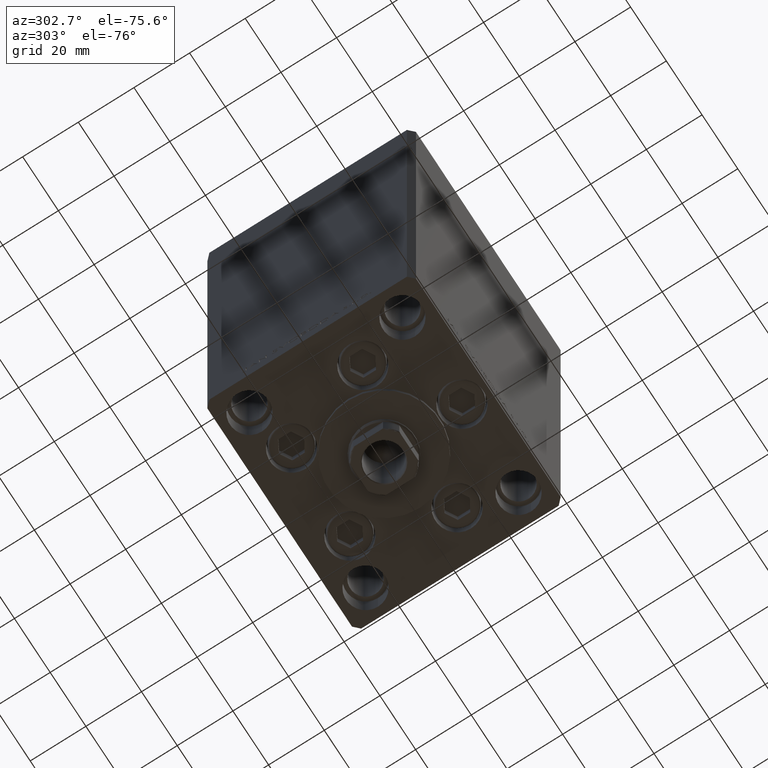
[diagram: clean part render]
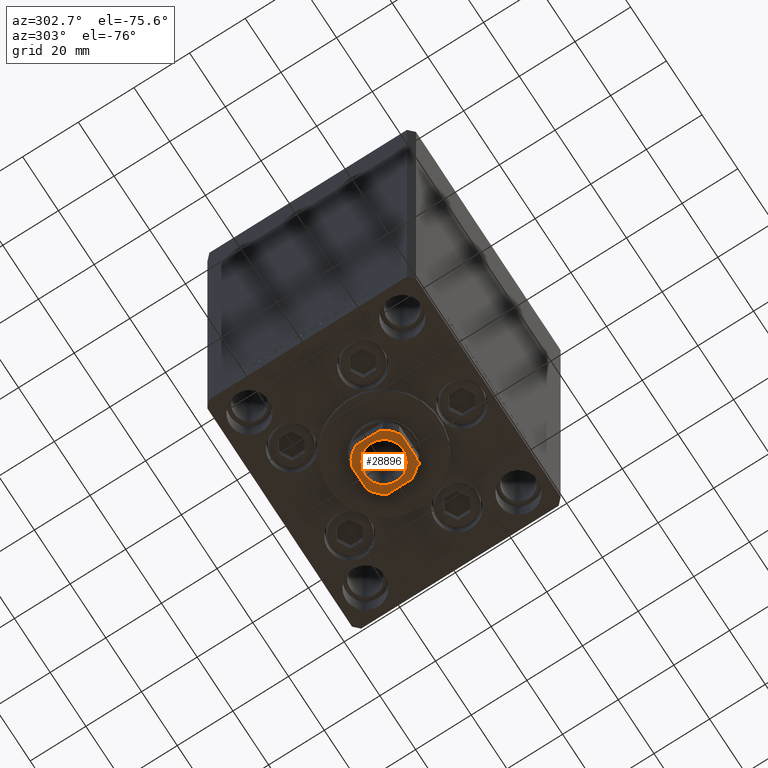
[diagram: same view with one face highlighted and labeled with its STEP entity id]
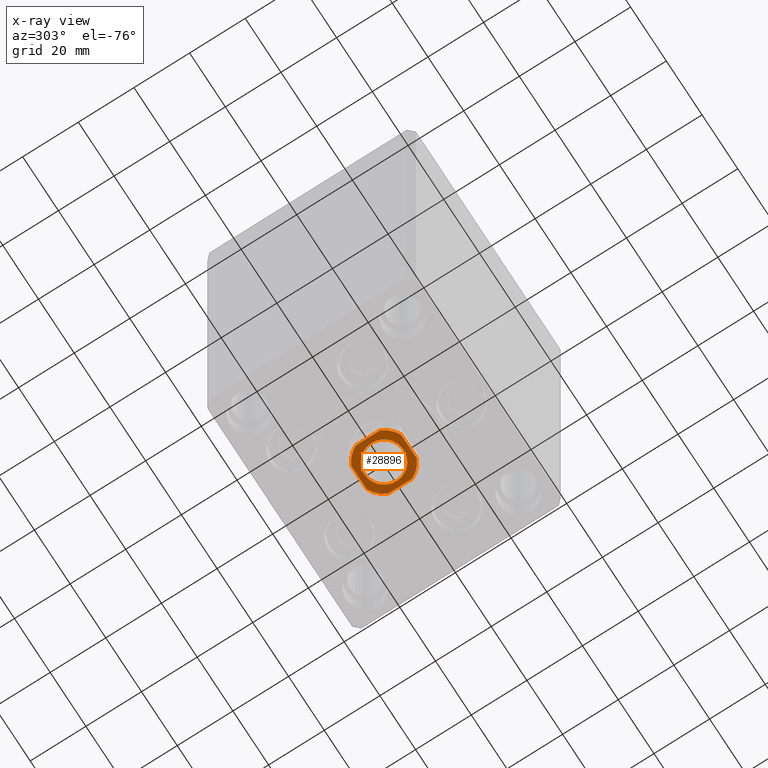
[diagram: x-ray of the same camera — body ghosted, the highlighted face saturated]
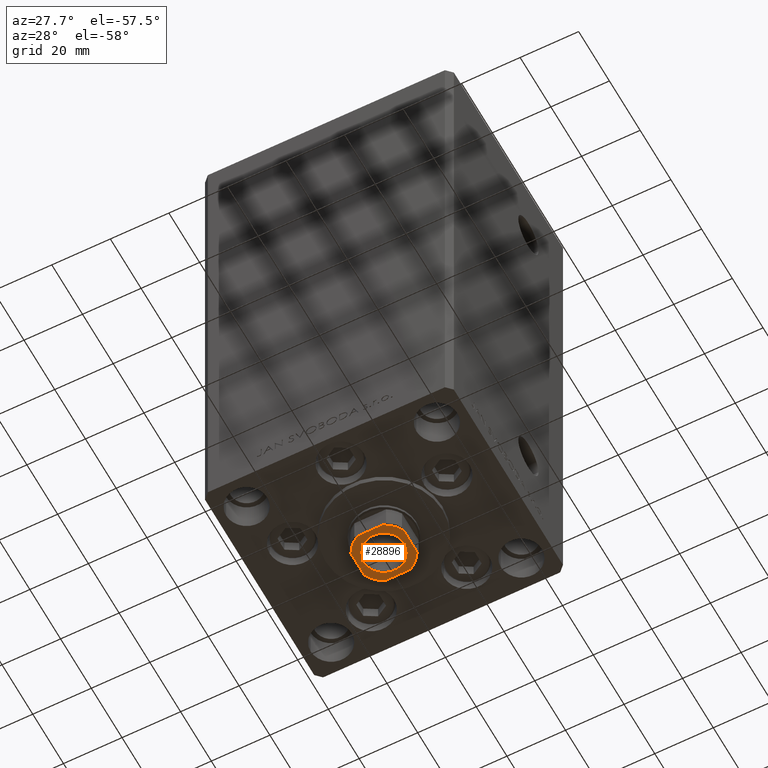
[diagram: same view with one face highlighted and labeled with its STEP entity id]
A machine part, auxiliary view. The second image highlights one B-rep face of the part: STEP entity #28896.
The next image is the same camera in x-ray: the body ghosted, the highlighted face saturated — about 0% of this face is hidden behind the body in this view.
A second angle (auxiliary view) of the same face is appended — the face is thin or edge-on in the first view.
In plain terms, the highlighted planar face has unit normal (0, 0, -1).
Its self-contained STEP definition (entity closure, byte-faithful):
#335 = AXIS2_PLACEMENT_3D ( 'NONE', #2737, #33126, #48305 ) ;
#525 = DIRECTION ( 'NONE',  ( 1.000000000000000000, 0.000000000000000000, 0.000000000000000000 ) ) ;
#1340 = VERTEX_POINT ( 'NONE', #37954 ) ;
#2737 = CARTESIAN_POINT ( 'NONE',  ( 0.000000000000000000, 0.000000000000000000, 155.7500000000000000 ) ) ;
#2802 = AXIS2_PLACEMENT_3D ( 'NONE', #42226, #30289, #26800 ) ;
#3368 = ORIENTED_EDGE ( 'NONE', *, *, #35708, .T. ) ;
#3545 = VECTOR ( 'NONE', #9568, 1000.000000000000000 ) ;
#4226 = FACE_OUTER_BOUND ( 'NONE', #30615, .T. ) ;
#4936 = VERTEX_POINT ( 'NONE', #7972 ) ;
#4956 = VECTOR ( 'NONE', #5552, 1000.000000000000000 ) ;
#5552 = DIRECTION ( 'NONE',  ( -9.637352644315595243E-17, 1.000000000000000000, -0.000000000000000000 ) ) ;
#6416 = DIRECTION ( 'NONE',  ( 1.000000000000000000, 0.000000000000000000, 0.000000000000000000 ) ) ;
#6913 = DIRECTION ( 'NONE',  ( 1.000000000000000000, 0.000000000000000000, 0.000000000000000000 ) ) ;
#7435 = CIRCLE ( 'NONE', #29697, 7.050000000000000711 ) ;
#7538 = AXIS2_PLACEMENT_3D ( 'NONE', #10373, #44259, #18095 ) ;
#7972 = CARTESIAN_POINT ( 'NONE',  ( -9.000000000000000000, 4.358898943540674864, 155.7500000000000000 ) ) ;
#8747 = CARTESIAN_POINT ( 'NONE',  ( 0.000000000000000000, 0.000000000000000000, 155.7500000000000000 ) ) ;
#8986 = CARTESIAN_POINT ( 'NONE',  ( -9.000000000000000000, -4.358898943540675752, 155.7500000000000000 ) ) ;
#9300 = LINE ( 'NONE', #24509, #4956 ) ;
#9568 = DIRECTION ( 'NONE',  ( -1.000000000000000000, -0.000000000000000000, -0.000000000000000000 ) ) ;
#9676 = DIRECTION ( 'NONE',  ( 0.000000000000000000, -0.000000000000000000, -1.000000000000000000 ) ) ;
#10373 = CARTESIAN_POINT ( 'NONE',  ( 0.000000000000000000, 0.000000000000000000, 155.7500000000000000 ) ) ;
#11058 = ORIENTED_EDGE ( 'NONE', *, *, #45298, .T. ) ;
#11086 = CARTESIAN_POINT ( 'NONE',  ( -4.358898943540671311, -9.000000000000001776, 155.7500000000000000 ) ) ;
#11385 = ORIENTED_EDGE ( 'NONE', *, *, #36939, .T. ) ;
#11716 = EDGE_CURVE ( 'NONE', #26142, #44104, #44909, .T. ) ;
#12184 = ORIENTED_EDGE ( 'NONE', *, *, #11716, .T. ) ;
#12258 = CARTESIAN_POINT ( 'NONE',  ( 7.050000000000000711, 0.000000000000000000, 155.7500000000000000 ) ) ;
#15084 = CARTESIAN_POINT ( 'NONE',  ( -4.358898943540678417, 8.999999999999998224, 155.7500000000000000 ) ) ;
#15702 = CARTESIAN_POINT ( 'NONE',  ( 0.000000000000000000, 0.000000000000000000, 155.7500000000000000 ) ) ;
#16040 = EDGE_LOOP ( 'NONE', ( #37790, #31451 ) ) ;
#17041 = CARTESIAN_POINT ( 'NONE',  ( -9.000000000000000000, 8.999999999999998224, 155.7500000000000000 ) ) ;
#18090 = VECTOR ( 'NONE', #38363, 1000.000000000000000 ) ;
#18095 = DIRECTION ( 'NONE',  ( 1.000000000000000000, 0.000000000000000000, 0.000000000000000000 ) ) ;
#20124 = EDGE_CURVE ( 'NONE', #4936, #24277, #42340, .T. ) ;
#22487 = CIRCLE ( 'NONE', #28865, 10.00000000000000000 ) ;
#24193 = VECTOR ( 'NONE', #30189, 1000.000000000000000 ) ;
#24277 = VERTEX_POINT ( 'NONE', #8986 ) ;
#24509 = CARTESIAN_POINT ( 'NONE',  ( 9.000000000000000000, 8.999999999999998224, 155.7500000000000000 ) ) ;
#24563 = CARTESIAN_POINT ( 'NONE',  ( -7.050000000000000711, 8.633759933988840961E-16, 155.7500000000000000 ) ) ;
#25666 = AXIS2_PLACEMENT_3D ( 'NONE', #8747, #27432, #525 ) ;
#25859 = DIRECTION ( 'NONE',  ( -0.000000000000000000, 0.000000000000000000, 1.000000000000000000 ) ) ;
#26142 = VERTEX_POINT ( 'NONE', #30186 ) ;
#26422 = CARTESIAN_POINT ( 'NONE',  ( -9.000000000000000000, 8.999999999999998224, 155.7500000000000000 ) ) ;
#26800 = DIRECTION ( 'NONE',  ( 1.000000000000000000, 0.000000000000000000, 0.000000000000000000 ) ) ;
#26889 = ORIENTED_EDGE ( 'NONE', *, *, #48401, .T. ) ;
#27432 = DIRECTION ( 'NONE',  ( -0.000000000000000000, 0.000000000000000000, 1.000000000000000000 ) ) ;
#28865 = AXIS2_PLACEMENT_3D ( 'NONE', #29828, #25859, #6913 ) ;
#28896 = ADVANCED_FACE ( 'NONE', ( #42099, #4226 ), #34633, .T. ) ;
#28980 = CIRCLE ( 'NONE', #335, 7.050000000000000711 ) ;
#29327 = VERTEX_POINT ( 'NONE', #15084 ) ;
#29464 = LINE ( 'NONE', #33932, #24193 ) ;
#29575 = CARTESIAN_POINT ( 'NONE',  ( 0.000000000000000000, 0.000000000000000000, 155.7500000000000000 ) ) ;
#29697 = AXIS2_PLACEMENT_3D ( 'NONE', #29575, #9676, #6416 ) ;
#29828 = CARTESIAN_POINT ( 'NONE',  ( 0.000000000000000000, 0.000000000000000000, 155.7500000000000000 ) ) ;
#30186 = CARTESIAN_POINT ( 'NONE',  ( 9.000000000000000000, 4.358898943540675752, 155.7500000000000000 ) ) ;
#30189 = DIRECTION ( 'NONE',  ( 1.000000000000000000, 0.000000000000000000, 0.000000000000000000 ) ) ;
#30289 = DIRECTION ( 'NONE',  ( -0.000000000000000000, 0.000000000000000000, 1.000000000000000000 ) ) ;
#30615 = EDGE_LOOP ( 'NONE', ( #35548, #26889, #11058, #11385, #3368, #12184, #41243, #31416 ) ) ;
#30887 = DIRECTION ( 'NONE',  ( -0.000000000000000000, 0.000000000000000000, 1.000000000000000000 ) ) ;
#31224 = VERTEX_POINT ( 'NONE', #24563 ) ;
#31416 = ORIENTED_EDGE ( 'NONE', *, *, #36488, .T. ) ;
#31451 = ORIENTED_EDGE ( 'NONE', *, *, #41490, .T. ) ;
#33126 = DIRECTION ( 'NONE',  ( 0.000000000000000000, -0.000000000000000000, -1.000000000000000000 ) ) ;
#33932 = CARTESIAN_POINT ( 'NONE',  ( -8.999999999999998224, -9.000000000000001776, 155.7500000000000000 ) ) ;
#34633 = PLANE ( 'NONE',  #48501 ) ;
#35019 = CARTESIAN_POINT ( 'NONE',  ( 4.358898943540677529, 8.999999999999998224, 155.7500000000000000 ) ) ;
#35548 = ORIENTED_EDGE ( 'NONE', *, *, #20124, .T. ) ;
#35708 = EDGE_CURVE ( 'NONE', #41022, #26142, #9300, .T. ) ;
#36488 = EDGE_CURVE ( 'NONE', #29327, #4936, #47124, .T. ) ;
#36939 = EDGE_CURVE ( 'NONE', #1340, #41022, #22487, .T. ) ;
#37790 = ORIENTED_EDGE ( 'NONE', *, *, #48999, .T. ) ;
#37897 = VERTEX_POINT ( 'NONE', #11086 ) ;
#37954 = CARTESIAN_POINT ( 'NONE',  ( 4.358898943540671311, -9.000000000000001776, 155.7500000000000000 ) ) ;
#38363 = DIRECTION ( 'NONE',  ( 9.637352644315595243E-17, -1.000000000000000000, 0.000000000000000000 ) ) ;
#38617 = DIRECTION ( 'NONE',  ( 1.000000000000000000, 0.000000000000000000, 0.000000000000000000 ) ) ;
#39262 = VERTEX_POINT ( 'NONE', #12258 ) ;
#39289 = CIRCLE ( 'NONE', #2802, 10.00000000000000000 ) ;
#41022 = VERTEX_POINT ( 'NONE', #44875 ) ;
#41243 = ORIENTED_EDGE ( 'NONE', *, *, #47459, .T. ) ;
#41490 = EDGE_CURVE ( 'NONE', #31224, #39262, #7435, .T. ) ;
#42099 = FACE_BOUND ( 'NONE', #16040, .T. ) ;
#42226 = CARTESIAN_POINT ( 'NONE',  ( 0.000000000000000000, 0.000000000000000000, 155.7500000000000000 ) ) ;
#42340 = LINE ( 'NONE', #26422, #18090 ) ;
#43691 = LINE ( 'NONE', #17041, #3545 ) ;
#44104 = VERTEX_POINT ( 'NONE', #35019 ) ;
#44259 = DIRECTION ( 'NONE',  ( -0.000000000000000000, 0.000000000000000000, 1.000000000000000000 ) ) ;
#44875 = CARTESIAN_POINT ( 'NONE',  ( 9.000000000000001776, -4.358898943540675752, 155.7500000000000000 ) ) ;
#44909 = CIRCLE ( 'NONE', #7538, 10.00000000000000000 ) ;
#45298 = EDGE_CURVE ( 'NONE', #37897, #1340, #29464, .T. ) ;
#47124 = CIRCLE ( 'NONE', #25666, 10.00000000000000000 ) ;
#47459 = EDGE_CURVE ( 'NONE', #44104, #29327, #43691, .T. ) ;
#48305 = DIRECTION ( 'NONE',  ( 1.000000000000000000, 0.000000000000000000, 0.000000000000000000 ) ) ;
#48401 = EDGE_CURVE ( 'NONE', #24277, #37897, #39289, .T. ) ;
#48501 = AXIS2_PLACEMENT_3D ( 'NONE', #15702, #30887, #38617 ) ;
#48999 = EDGE_CURVE ( 'NONE', #39262, #31224, #28980, .T. ) ;